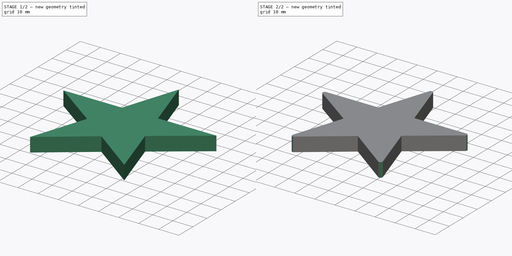
[diagram: build sequence overview — one tinted view per stage of 2, left to right]
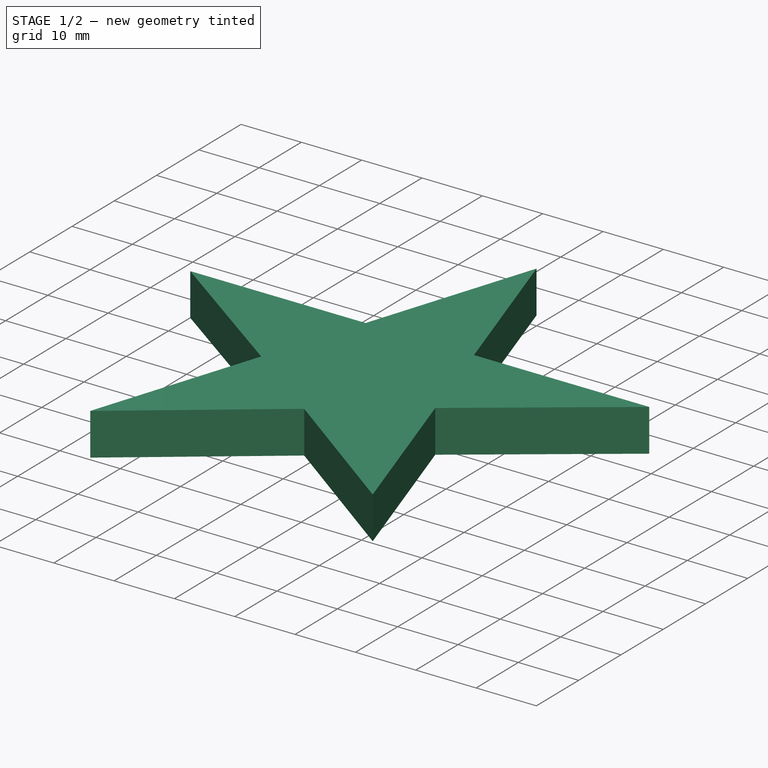
[diagram: stage 1 of 2 — iso view after this stage's code; geometry added in this stage tinted green]
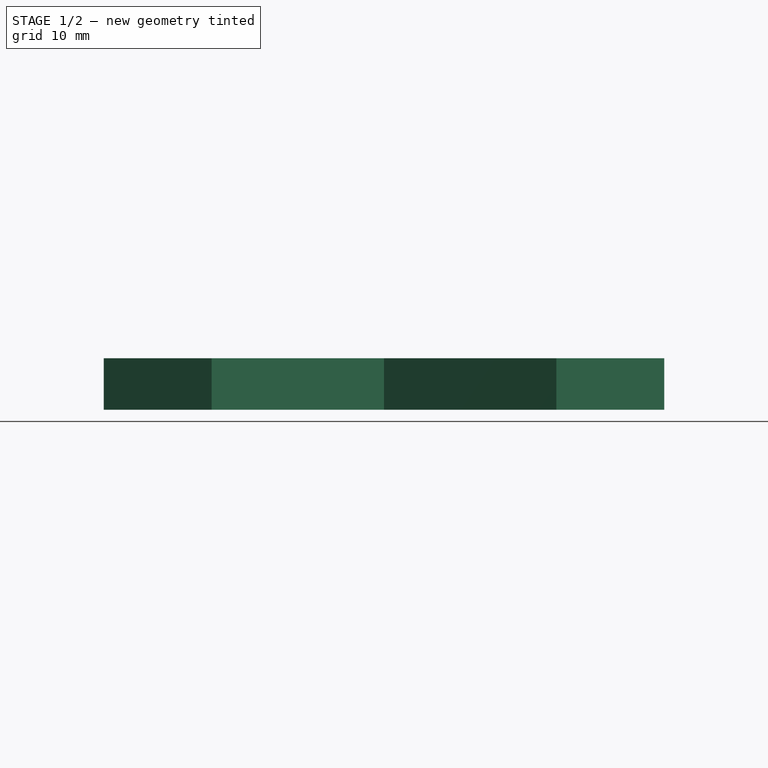
[diagram: stage 1 of 2 — front view after this stage's code; geometry added in this stage tinted green]
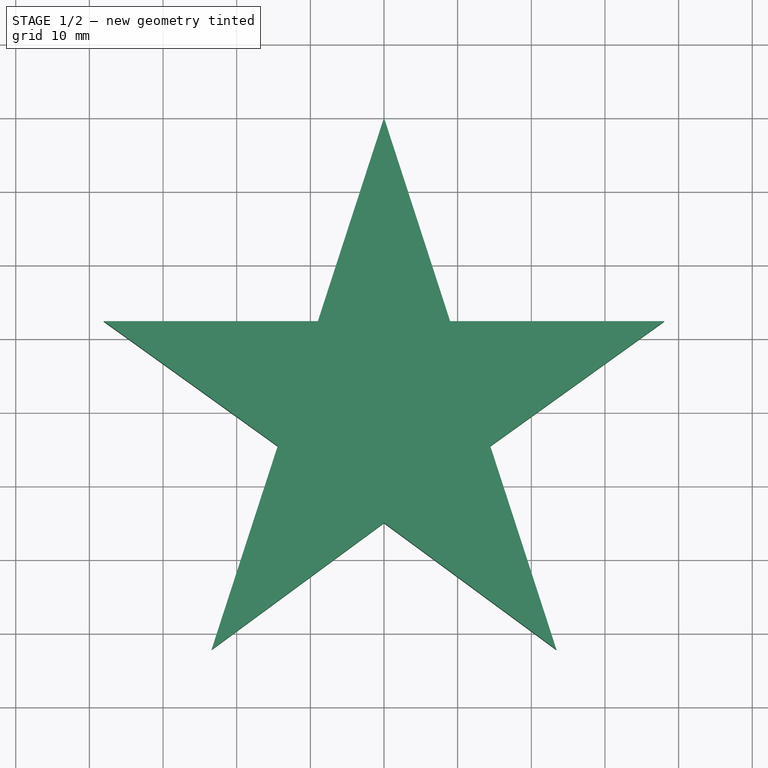
[diagram: stage 1 of 2 — top view after this stage's code; geometry added in this stage tinted green]
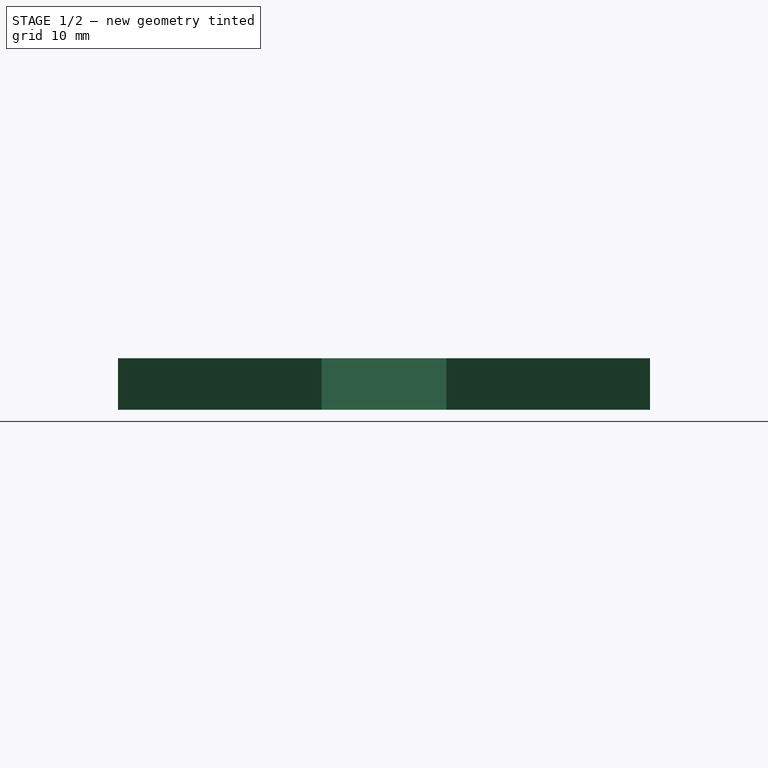
[diagram: stage 1 of 2 — right view after this stage's code; geometry added in this stage tinted green]
FCSTD DOCUMENT  (FreeCAD 0.21R33771 (Git))
Label: OJT1_T20R03_estel
License: All rights reserved
LicenseURL: https://en.wikipedia.org/wiki/All_rights_reserved
objects: Sketcher::SketchObject×1, PartDesign::Pad×1, PartDesign::Body×1, Part::Fillet×1
note: 5 computed .brp shape members not serialized (recipe doc carries the construction recipe); baked Part::Feature solids carry a one-line shape summary decoded from their .brp

FEATURE [Sketcher::SketchObject] Sketch
  FullyConstrained = true
  MapMode = 5
  Support = -> [XY_Plane]
  sketch-geometry (16):
    g0: LineSegment StartX=0 StartY=40 StartZ=0 EndX=-8.98056 EndY=12.3607 EndZ=0
    g1: LineSegment StartX=-8.98056 StartY=12.3607 StartZ=0 EndX=-38.0423 EndY=12.3607 EndZ=0
    g2: LineSegment StartX=-38.0423 StartY=12.3607 StartZ=0 EndX=-14.4298 EndY=-4.58144 EndZ=0
    g3: LineSegment StartX=-14.4298 StartY=-4.58144 StartZ=0 EndX=-23.4099 EndY=-32.2209 EndZ=0
    g4: LineSegment StartX=-23.4099 StartY=-32.2209 StartZ=0 EndX=0 EndY=-15 EndZ=0
    g5: LineSegment StartX=0 StartY=-15 StartZ=0 EndX=23.4099 EndY=-32.2209 EndZ=0
    g6: LineSegment StartX=23.4099 StartY=-32.2209 StartZ=0 EndX=14.4298 EndY=-4.58144 EndZ=0
    g7: LineSegment StartX=14.4298 StartY=-4.58144 StartZ=0 EndX=38.0423 EndY=12.3607 EndZ=0
    g8: LineSegment StartX=38.0423 StartY=12.3607 StartZ=0 EndX=8.98056 EndY=12.3607 EndZ=0
    g9: LineSegment StartX=8.98056 StartY=12.3607 StartZ=0 EndX=0 EndY=40 EndZ=0
    g10: LineSegment StartX=0 StartY=40 StartZ=0 EndX=0 EndY=0 EndZ=0
    g11: LineSegment StartX=0 StartY=0 StartZ=0 EndX=0 EndY=-15 EndZ=0
    g12: LineSegment StartX=0 StartY=0 StartZ=0 EndX=-23.4099 EndY=-32.2209 EndZ=0
    g13: LineSegment StartX=0 StartY=0 StartZ=0 EndX=-14.4298 EndY=-4.58144 EndZ=0
    g14: LineSegment StartX=0 StartY=0 StartZ=0 EndX=-38.0423 EndY=12.3607 EndZ=0
    g15: LineSegment StartX=0 StartY=0 StartZ=0 EndX=-8.98056 EndY=12.3607 EndZ=0
  constraints (38):
    c: PointOnObject(g0,g-2)
    c: Coincident(g0,g1)
    c: Coincident(g1,g2)
    c: Coincident(g2,g3)
    c: Coincident(g3,g4)
    c: Coincident(g5,g6)
    c: Coincident(g6,g7)
    c: Coincident(g7,g8)
    c: Coincident(g8,g9)
    c: Coincident(g9,g0)
    c: Coincident(g4,g5)
    c: PointOnObject(g4,g-2)
    c: Horizontal(g1)
    c: DistanceY(g11,g11) = 15
    c: Coincident(g4,g11)
    c: Coincident(g11,g10)
    c: Coincident(g12,g10)
    c: Coincident(g10,g13)
    c: Coincident(g14,g10)
    c: Equal(g1,g0)
    c: Equal(g0,g2)
    c: Equal(g2,g3)
    c: Equal(g3,g4)
    c: Symmetric(g0,g8,g10)
    c: Coincident(g0,g15)
    c: Coincident(g1,g14)
    c: Coincident(g0,g10)
    c: Coincident(g3,g12)
    c: Coincident(g10,g15)
    c: Coincident(g10,g-1)
    c: Coincident(g2,g13)
    c: Angle(g10,g14) = 1.25664
    c: Angle(g14,g12) = 1.25664
    c: DistanceY(g10,g0) = 40
    c: Angle(g10,g15) = 0.628319
    c: Symmetric(g3,g5,g-2)
    c: Symmetric(g1,g7,g-2)
    c: Symmetric(g2,g6,g-2)
FEATURE [PartDesign::Pad] Pad
  Direction = (0,0,1)
  Length = 7
  Length2 = 10
  Profile = -> Sketch
  ReferenceAxis = -> Sketch [N_Axis]
  Type = 0
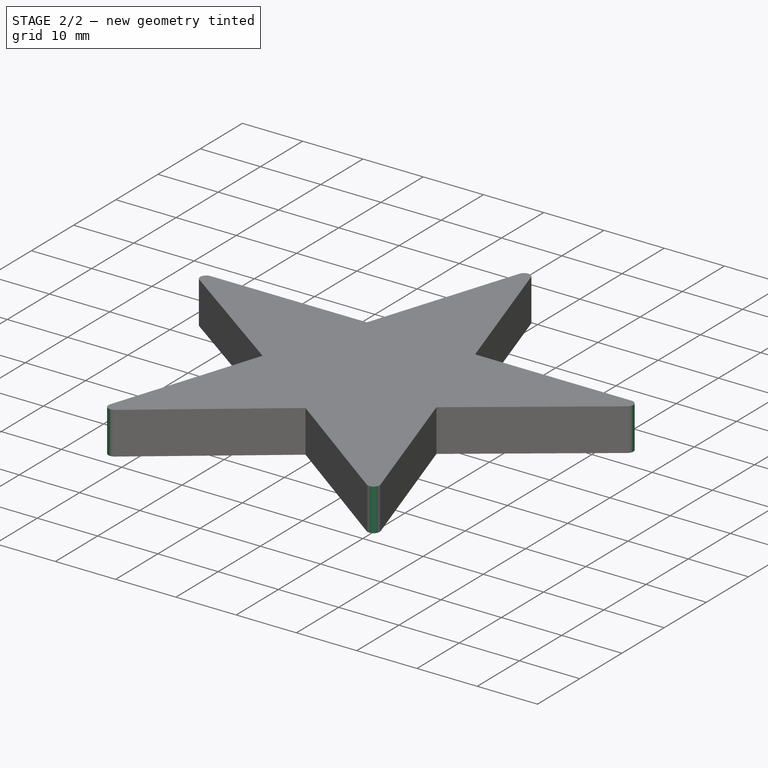
[diagram: stage 2 of 2 — iso view after this stage's code; geometry added in this stage tinted green]
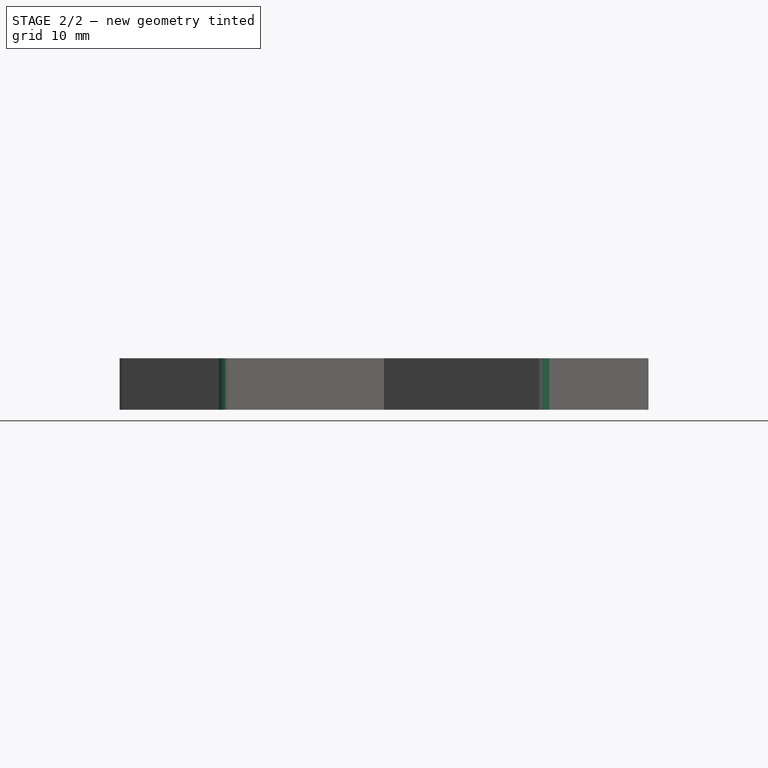
[diagram: stage 2 of 2 — front view after this stage's code; geometry added in this stage tinted green]
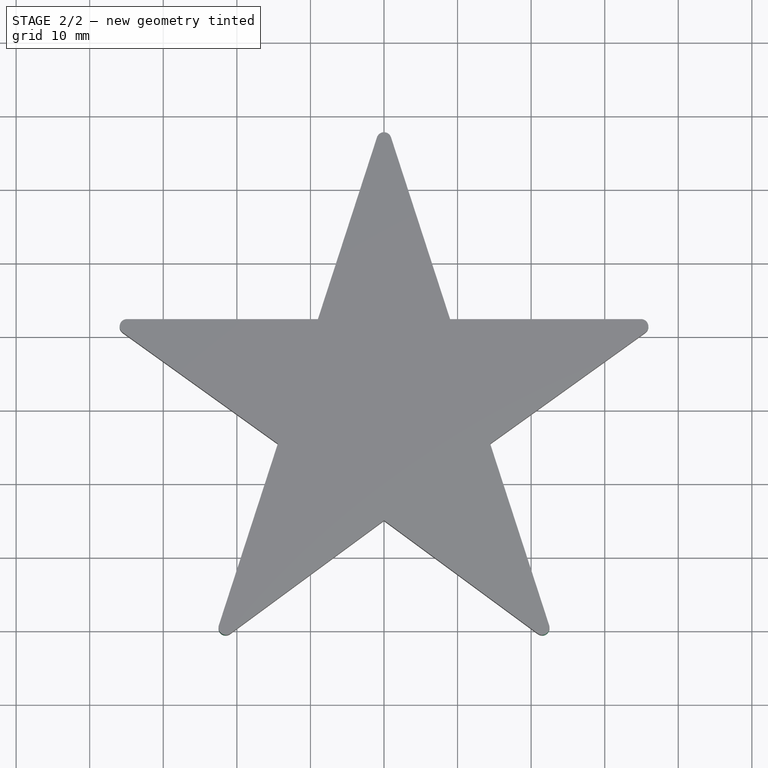
[diagram: stage 2 of 2 — top view after this stage's code; geometry added in this stage tinted green]
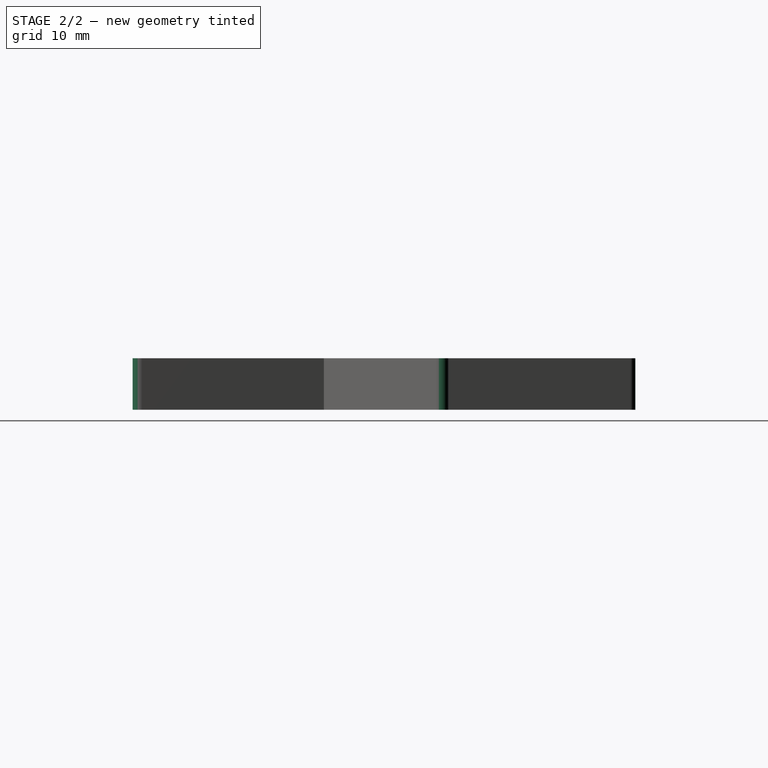
[diagram: stage 2 of 2 — right view after this stage's code; geometry added in this stage tinted green]
FEATURE [PartDesign::Body] Body
  Group = -> [Sketch,Pad]
  Origin = -> Origin
  Tip = -> Pad
FEATURE [Part::Fillet] Fillet
  Base = -> Pad
  Edges = 5 edges r=1: [Edge1,Edge5,Edge11,Edge17,Edge23]
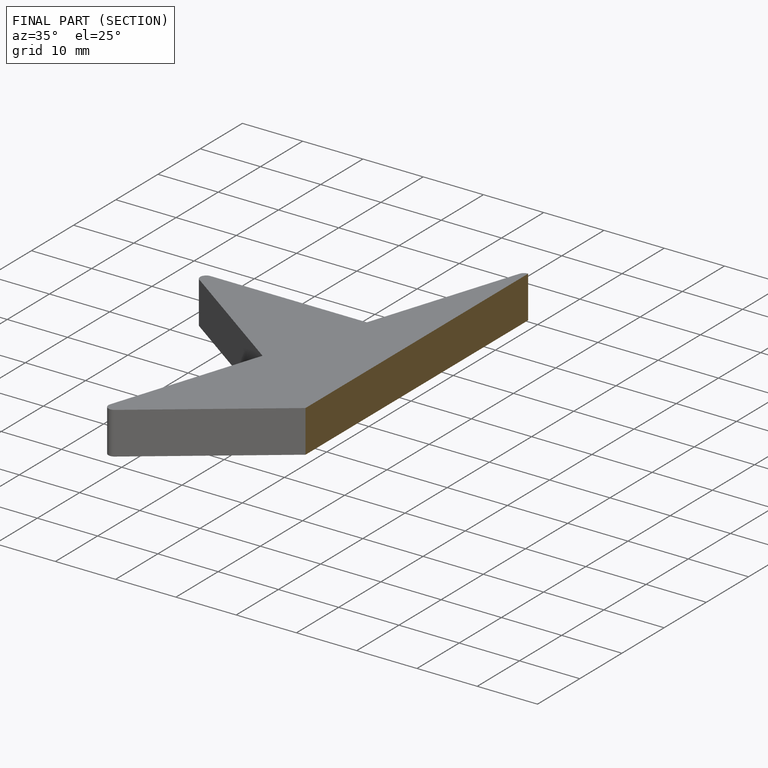
[diagram: finished part — half-section view (interior)]
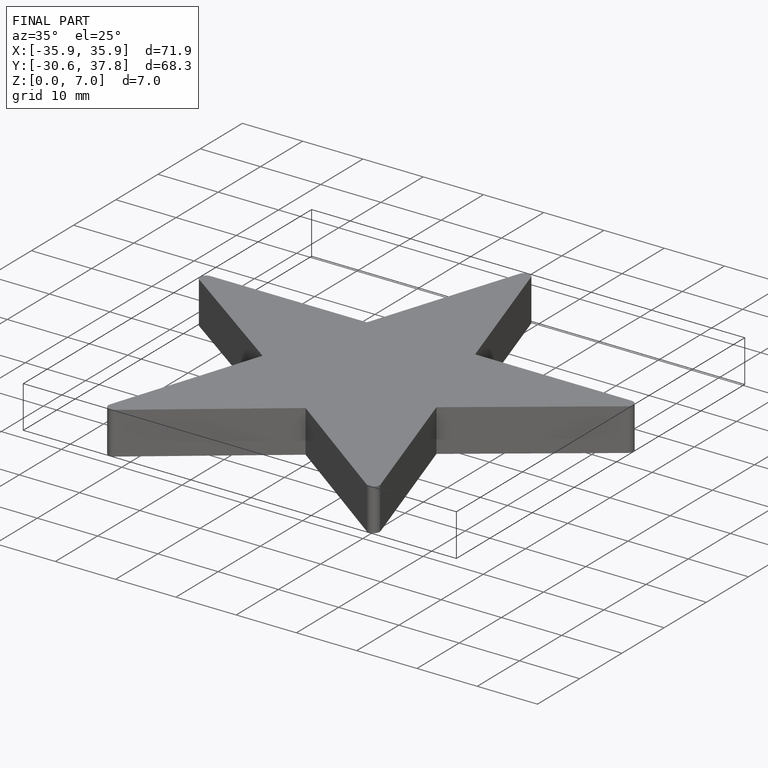
[diagram: finished part — iso view with bounding-box wireframe]
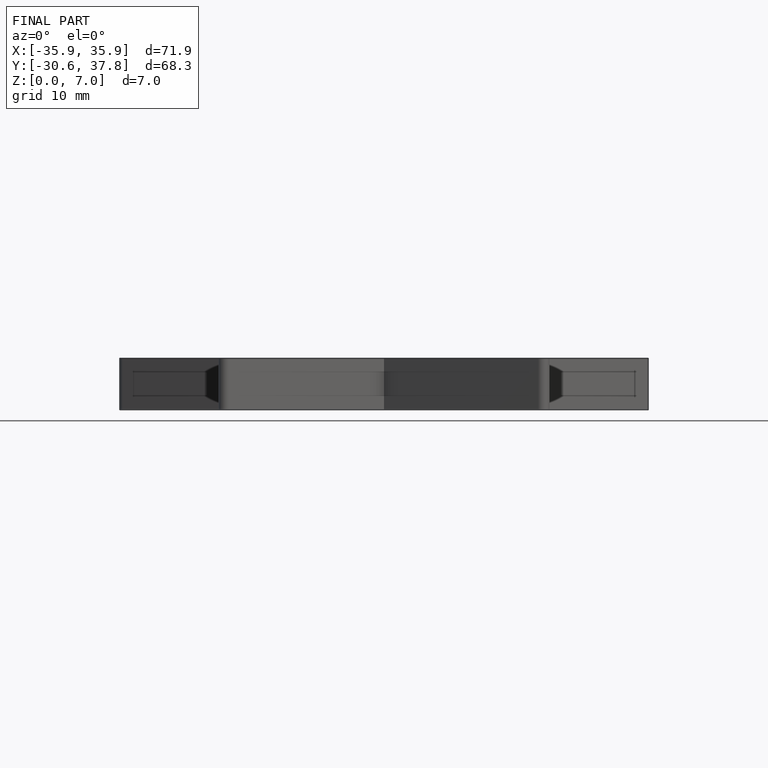
[diagram: finished part — front view with bounding-box wireframe]
